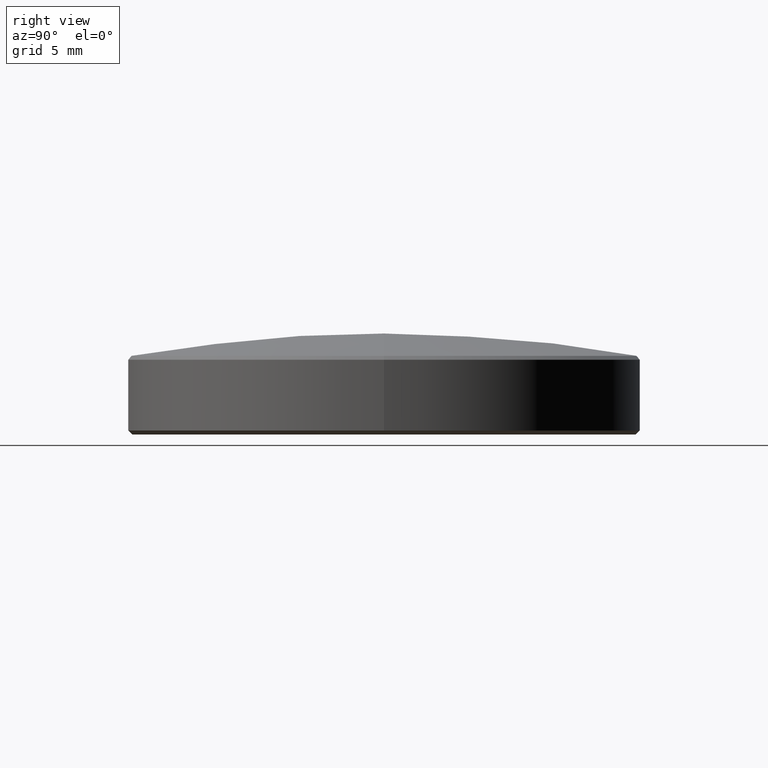
[diagram: clean part render]
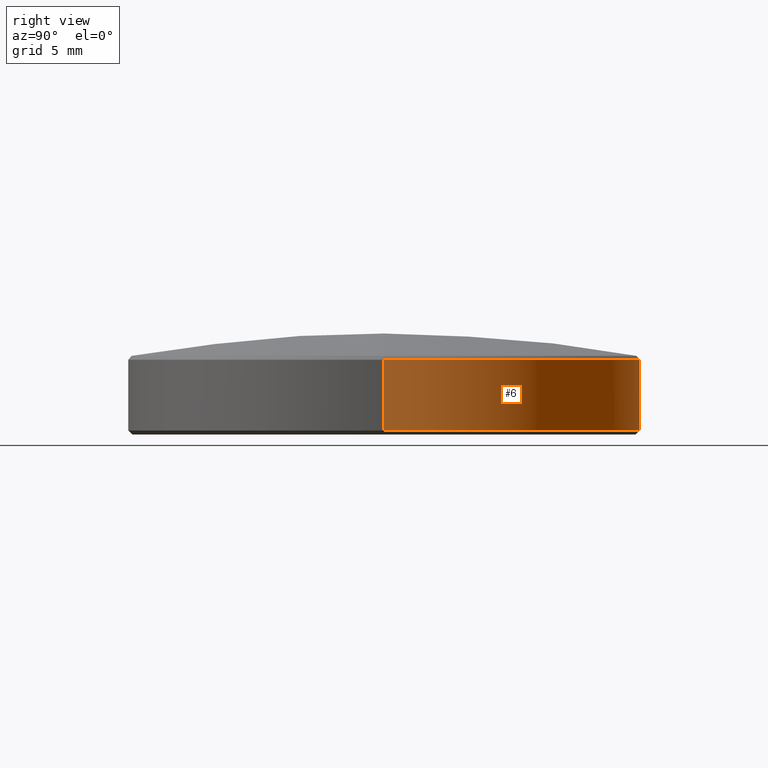
[diagram: same view with one face highlighted and labeled with its STEP entity id]
A machine part, right view. The second image highlights one B-rep face of the part: STEP entity #6.
In plain terms, the highlighted cylindrical surface (partial cylindrical patch) has radius 12.7 mm, axis along (-0, -0, -1).
Its self-contained STEP definition (entity closure, byte-faithful):
#1 = ORIENTED_EDGE ( 'NONE', *, *, #106, .T. ) ;
#6 = ADVANCED_FACE ( 'NONE', ( #213 ), #10, .T. ) ;
#10 = CYLINDRICAL_SURFACE ( 'NONE', #163, 12.69999999999999929 ) ;
#21 = ORIENTED_EDGE ( 'NONE', *, *, #99, .T. ) ;
#25 = CARTESIAN_POINT ( 'NONE',  ( 0.000000000000000000, 0.000000000000000000, 3.879999999999999893 ) ) ;
#27 = LINE ( 'NONE', #110, #42 ) ;
#30 = VERTEX_POINT ( 'NONE', #258 ) ;
#41 = VECTOR ( 'NONE', #150, 1000.000000000000000 ) ;
#42 = VECTOR ( 'NONE', #237, 1000.000000000000000 ) ;
#54 = EDGE_CURVE ( 'NONE', #191, #238, #132, .T. ) ;
#62 = DIRECTION ( 'NONE',  ( 0.000000000000000000, 0.000000000000000000, -1.000000000000000000 ) ) ;
#78 = CIRCLE ( 'NONE', #105, 12.69999999999999929 ) ;
#89 = DIRECTION ( 'NONE',  ( -0.000000000000000000, -0.000000000000000000, -1.000000000000000000 ) ) ;
#90 = CARTESIAN_POINT ( 'NONE',  ( -12.69999999999999929, 0.000000000000000000, 3.879999999999999893 ) ) ;
#99 = EDGE_CURVE ( 'NONE', #255, #30, #27, .T. ) ;
#100 = CARTESIAN_POINT ( 'NONE',  ( -12.69999999999999929, 0.000000000000000000, 0.1999999999999987899 ) ) ;
#105 = AXIS2_PLACEMENT_3D ( 'NONE', #198, #264, #218 ) ;
#106 = EDGE_CURVE ( 'NONE', #191, #255, #224, .T. ) ;
#108 = AXIS2_PLACEMENT_3D ( 'NONE', #203, #62, #263 ) ;
#110 = CARTESIAN_POINT ( 'NONE',  ( 12.69999999999999929, 1.555301434917138433E-15, 3.879999999999999893 ) ) ;
#121 = CARTESIAN_POINT ( 'NONE',  ( 12.69999999999999929, 1.555301434917138433E-15, 3.698237612947643971 ) ) ;
#132 = LINE ( 'NONE', #90, #41 ) ;
#150 = DIRECTION ( 'NONE',  ( -0.000000000000000000, -0.000000000000000000, -1.000000000000000000 ) ) ;
#157 = EDGE_CURVE ( 'NONE', #30, #238, #78, .T. ) ;
#163 = AXIS2_PLACEMENT_3D ( 'NONE', #25, #89, #234 ) ;
#180 = CARTESIAN_POINT ( 'NONE',  ( -12.69999999999999929, 0.000000000000000000, 3.698237612947643971 ) ) ;
#191 = VERTEX_POINT ( 'NONE', #180 ) ;
#197 = ORIENTED_EDGE ( 'NONE', *, *, #157, .T. ) ;
#198 = CARTESIAN_POINT ( 'NONE',  ( 0.000000000000000000, 0.000000000000000000, 0.1999999999999987899 ) ) ;
#203 = CARTESIAN_POINT ( 'NONE',  ( 0.000000000000000000, 0.000000000000000000, 3.698237612947643971 ) ) ;
#207 = ORIENTED_EDGE ( 'NONE', *, *, #54, .F. ) ;
#213 = FACE_OUTER_BOUND ( 'NONE', #235, .T. ) ;
#218 = DIRECTION ( 'NONE',  ( 1.000000000000000000, 0.000000000000000000, 0.000000000000000000 ) ) ;
#224 = CIRCLE ( 'NONE', #108, 12.69999999999999929 ) ;
#234 = DIRECTION ( 'NONE',  ( -1.000000000000000000, 0.000000000000000000, 0.000000000000000000 ) ) ;
#235 = EDGE_LOOP ( 'NONE', ( #1, #21, #197, #207 ) ) ;
#237 = DIRECTION ( 'NONE',  ( -0.000000000000000000, -0.000000000000000000, -1.000000000000000000 ) ) ;
#238 = VERTEX_POINT ( 'NONE', #100 ) ;
#255 = VERTEX_POINT ( 'NONE', #121 ) ;
#258 = CARTESIAN_POINT ( 'NONE',  ( 12.69999999999999929, 1.555301434917138433E-15, 0.1999999999999987899 ) ) ;
#263 = DIRECTION ( 'NONE',  ( 1.000000000000000000, 0.000000000000000000, 0.000000000000000000 ) ) ;
#264 = DIRECTION ( 'NONE',  ( -0.000000000000000000, -0.000000000000000000, 1.000000000000000000 ) ) ;